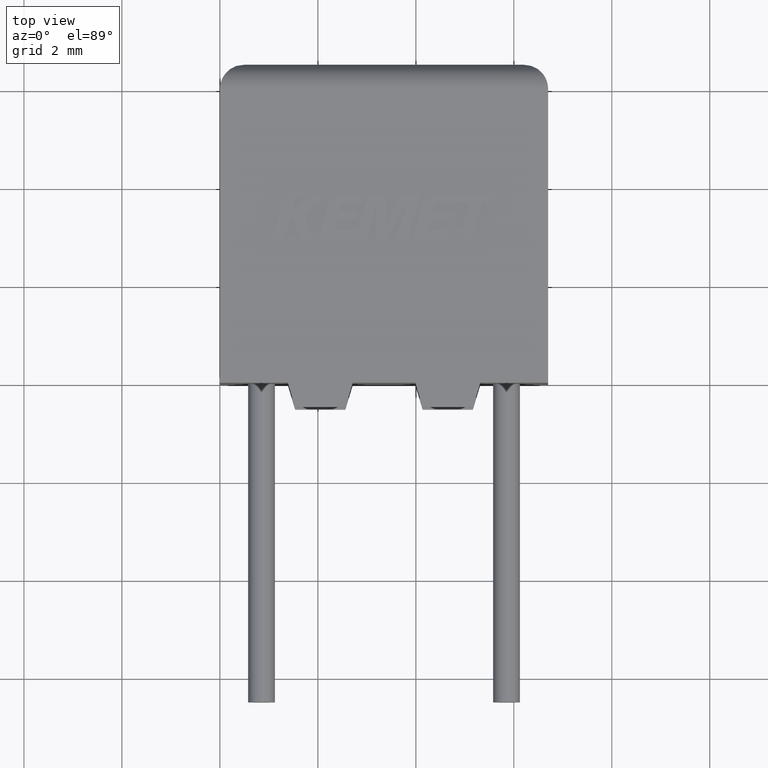
[diagram: clean part render]
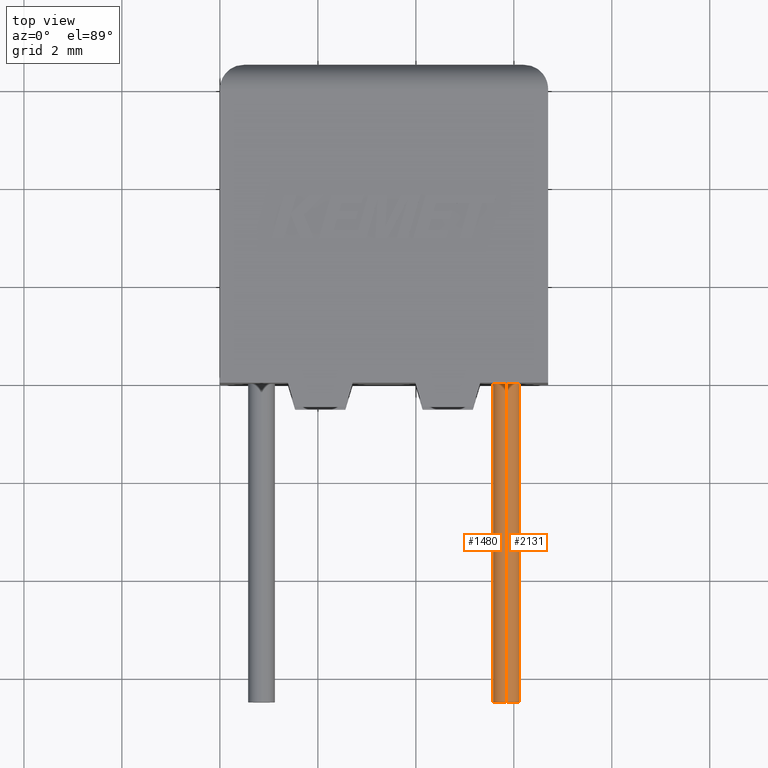
[diagram: same view with one multi-face feature highlighted, each face labeled with its STEP entity id]
A machine part, top view. The highlighted faces form ONE feature: a constant-radius fillet chain: 2 tangent blend faces with common blend radius 0.275 mm. The faces share edges in the B-rep.
Their STEP definitions:
[1] entity #1480 (Cylinder):
#1 = EDGE_CURVE ( 'NONE', #1434, #117, #1390, .T. ) ;
#117 = VERTEX_POINT ( 'NONE', #1318 ) ;
#133 = DIRECTION ( 'NONE',  ( 0.000000000000000000, 0.000000000000000000, 1.000000000000000000 ) ) ;
#279 = ORIENTED_EDGE ( 'NONE', *, *, #2763, .T. ) ;
#391 = FACE_OUTER_BOUND ( 'NONE', #1972, .T. ) ;
#411 = VECTOR ( 'NONE', #1234, 1000.000000000000000 ) ;
#534 = CARTESIAN_POINT ( 'NONE',  ( 5.850000000000001421, 0.000000000000000000, 1.499999999999999334 ) ) ;
#675 = AXIS2_PLACEMENT_3D ( 'NONE', #2972, #2192, #3186 ) ;
#689 = CYLINDRICAL_SURFACE ( 'NONE', #1720, 0.2750000000000000777 ) ;
#788 = CARTESIAN_POINT ( 'NONE',  ( 5.850000000000001421, -6.500000000000000000, 1.224999999999999201 ) ) ;
#849 = EDGE_CURVE ( 'NONE', #1434, #3089, #1269, .T. ) ;
#1234 = DIRECTION ( 'NONE',  ( -0.000000000000000000, 1.000000000000000000, -0.000000000000000000 ) ) ;
#1269 = LINE ( 'NONE', #3215, #411 ) ;
#1276 = DIRECTION ( 'NONE',  ( 0.000000000000000000, 0.000000000000000000, -1.000000000000000000 ) ) ;
#1318 = CARTESIAN_POINT ( 'NONE',  ( 5.850000000000001421, -6.500000000000000000, 1.774999999999999467 ) ) ;
#1390 = CIRCLE ( 'NONE', #675, 0.2750000000000000777 ) ;
#1434 = VERTEX_POINT ( 'NONE', #788 ) ;
#1480 = ADVANCED_FACE ( 'NONE', ( #391 ), #689, .T. ) ;
#1654 = EDGE_CURVE ( 'NONE', #3089, #2185, #2608, .T. ) ;
#1720 = AXIS2_PLACEMENT_3D ( 'NONE', #2686, #1914, #133 ) ;
#1883 = AXIS2_PLACEMENT_3D ( 'NONE', #534, #2532, #1276 ) ;
#1914 = DIRECTION ( 'NONE',  ( -0.000000000000000000, 1.000000000000000000, -0.000000000000000000 ) ) ;
#1972 = EDGE_LOOP ( 'NONE', ( #2656, #3015, #279, #2810 ) ) ;
#2113 = CARTESIAN_POINT ( 'NONE',  ( 5.850000000000001421, 0.000000000000000000, 1.224999999999999201 ) ) ;
#2145 = CARTESIAN_POINT ( 'NONE',  ( 5.850000000000001421, -6.500000000000000000, 1.774999999999999467 ) ) ;
#2156 = VECTOR ( 'NONE', #2683, 1000.000000000000000 ) ;
#2185 = VERTEX_POINT ( 'NONE', #2521 ) ;
#2192 = DIRECTION ( 'NONE',  ( -0.000000000000000000, 1.000000000000000000, -0.000000000000000000 ) ) ;
#2394 = LINE ( 'NONE', #2145, #2156 ) ;
#2521 = CARTESIAN_POINT ( 'NONE',  ( 5.850000000000001421, 0.000000000000000000, 1.774999999999999467 ) ) ;
#2532 = DIRECTION ( 'NONE',  ( -0.000000000000000000, 1.000000000000000000, -0.000000000000000000 ) ) ;
#2608 = CIRCLE ( 'NONE', #1883, 0.2750000000000000777 ) ;
#2656 = ORIENTED_EDGE ( 'NONE', *, *, #849, .F. ) ;
#2683 = DIRECTION ( 'NONE',  ( -0.000000000000000000, 1.000000000000000000, -0.000000000000000000 ) ) ;
#2686 = CARTESIAN_POINT ( 'NONE',  ( 5.850000000000001421, -6.500000000000000000, 1.499999999999999334 ) ) ;
#2763 = EDGE_CURVE ( 'NONE', #117, #2185, #2394, .T. ) ;
#2810 = ORIENTED_EDGE ( 'NONE', *, *, #1654, .F. ) ;
#2972 = CARTESIAN_POINT ( 'NONE',  ( 5.850000000000001421, -6.500000000000000000, 1.499999999999999334 ) ) ;
#3015 = ORIENTED_EDGE ( 'NONE', *, *, #1, .T. ) ;
#3089 = VERTEX_POINT ( 'NONE', #2113 ) ;
#3186 = DIRECTION ( 'NONE',  ( 0.000000000000000000, 0.000000000000000000, -1.000000000000000000 ) ) ;
#3215 = CARTESIAN_POINT ( 'NONE',  ( 5.850000000000001421, -6.500000000000000000, 1.224999999999999201 ) ) ;
[2] entity #2131 (Cylinder):
#117 = VERTEX_POINT ( 'NONE', #1318 ) ;
#212 = DIRECTION ( 'NONE',  ( -0.000000000000000000, 1.000000000000000000, -0.000000000000000000 ) ) ;
#370 = ORIENTED_EDGE ( 'NONE', *, *, #849, .T. ) ;
#411 = VECTOR ( 'NONE', #1234, 1000.000000000000000 ) ;
#478 = CARTESIAN_POINT ( 'NONE',  ( 5.850000000000001421, -6.500000000000000000, 1.499999999999999334 ) ) ;
#688 = AXIS2_PLACEMENT_3D ( 'NONE', #1688, #2687, #2431 ) ;
#724 = DIRECTION ( 'NONE',  ( -0.000000000000000000, 1.000000000000000000, -0.000000000000000000 ) ) ;
#788 = CARTESIAN_POINT ( 'NONE',  ( 5.850000000000001421, -6.500000000000000000, 1.224999999999999201 ) ) ;
#791 = ORIENTED_EDGE ( 'NONE', *, *, #2525, .F. ) ;
#849 = EDGE_CURVE ( 'NONE', #1434, #3089, #1269, .T. ) ;
#967 = DIRECTION ( 'NONE',  ( 0.000000000000000000, 0.000000000000000000, 1.000000000000000000 ) ) ;
#981 = CYLINDRICAL_SURFACE ( 'NONE', #2152, 0.2750000000000000777 ) ;
#1173 = ORIENTED_EDGE ( 'NONE', *, *, #2763, .F. ) ;
#1201 = DIRECTION ( 'NONE',  ( 0.000000000000000000, 0.000000000000000000, -1.000000000000000000 ) ) ;
#1234 = DIRECTION ( 'NONE',  ( -0.000000000000000000, 1.000000000000000000, -0.000000000000000000 ) ) ;
#1269 = LINE ( 'NONE', #3215, #411 ) ;
#1318 = CARTESIAN_POINT ( 'NONE',  ( 5.850000000000001421, -6.500000000000000000, 1.774999999999999467 ) ) ;
#1405 = CIRCLE ( 'NONE', #688, 0.2750000000000000777 ) ;
#1434 = VERTEX_POINT ( 'NONE', #788 ) ;
#1537 = CARTESIAN_POINT ( 'NONE',  ( 5.850000000000001421, -6.500000000000000000, 1.499999999999999334 ) ) ;
#1688 = CARTESIAN_POINT ( 'NONE',  ( 5.850000000000001421, 0.000000000000000000, 1.499999999999999334 ) ) ;
#1782 = CIRCLE ( 'NONE', #1837, 0.2750000000000000777 ) ;
#1837 = AXIS2_PLACEMENT_3D ( 'NONE', #1537, #212, #1201 ) ;
#2113 = CARTESIAN_POINT ( 'NONE',  ( 5.850000000000001421, 0.000000000000000000, 1.224999999999999201 ) ) ;
#2131 = ADVANCED_FACE ( 'NONE', ( #2787 ), #981, .T. ) ;
#2145 = CARTESIAN_POINT ( 'NONE',  ( 5.850000000000001421, -6.500000000000000000, 1.774999999999999467 ) ) ;
#2152 = AXIS2_PLACEMENT_3D ( 'NONE', #478, #724, #967 ) ;
#2156 = VECTOR ( 'NONE', #2683, 1000.000000000000000 ) ;
#2185 = VERTEX_POINT ( 'NONE', #2521 ) ;
#2226 = EDGE_CURVE ( 'NONE', #117, #1434, #1782, .T. ) ;
#2303 = ORIENTED_EDGE ( 'NONE', *, *, #2226, .T. ) ;
#2394 = LINE ( 'NONE', #2145, #2156 ) ;
#2431 = DIRECTION ( 'NONE',  ( 0.000000000000000000, 0.000000000000000000, -1.000000000000000000 ) ) ;
#2521 = CARTESIAN_POINT ( 'NONE',  ( 5.850000000000001421, 0.000000000000000000, 1.774999999999999467 ) ) ;
#2525 = EDGE_CURVE ( 'NONE', #2185, #3089, #1405, .T. ) ;
#2683 = DIRECTION ( 'NONE',  ( -0.000000000000000000, 1.000000000000000000, -0.000000000000000000 ) ) ;
#2687 = DIRECTION ( 'NONE',  ( -0.000000000000000000, 1.000000000000000000, -0.000000000000000000 ) ) ;
#2763 = EDGE_CURVE ( 'NONE', #117, #2185, #2394, .T. ) ;
#2787 = FACE_OUTER_BOUND ( 'NONE', #3036, .T. ) ;
#3036 = EDGE_LOOP ( 'NONE', ( #2303, #370, #791, #1173 ) ) ;
#3089 = VERTEX_POINT ( 'NONE', #2113 ) ;
#3215 = CARTESIAN_POINT ( 'NONE',  ( 5.850000000000001421, -6.500000000000000000, 1.224999999999999201 ) ) ;